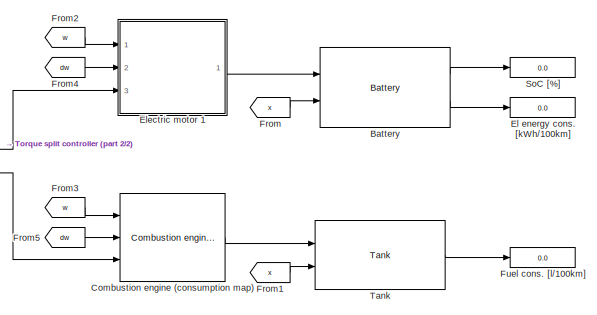
[diagram: root canvas - part 1/2, right side, full height]
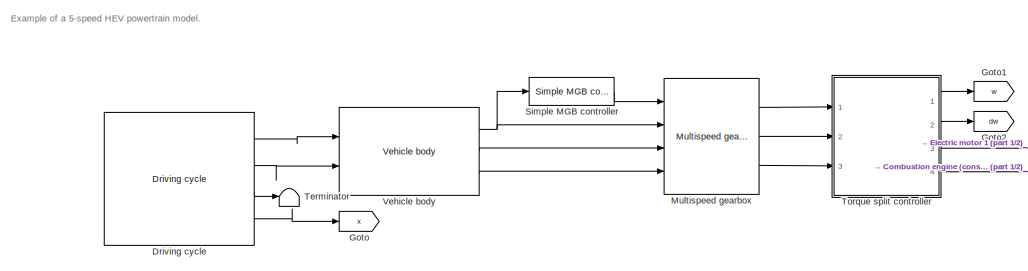
[diagram: root canvas - part 2/2, left side, full height]
MODEL slx_76bec8218064
KIND model
CONFIG AbsTol = auto
CONFIG EnableMultiTasking = off
CONFIG FixedStep = 1
CONFIG MaxStep = auto
CONFIG MinStep = auto
CONFIG RelTol = 1e-3
CONFIG SampleTimeConstraint = Unconstrained
CONFIG SolverName = ode1
CONFIG StartTime = 0.0
CONFIG StopTime = 1800
BLOCK [Reference] Battery  REF=EnergyStorage/Battery
  Ports = [2, 2]
  SourceBlock = EnergyStorage/Battery
  SourceProductName = QSS TU/e 4AT030
  SourceType = Battery
BLOCK [Reference] Combustion engine (consumption map)  REF=EnergyConverters/Combustion engine 
(consumption map)
  Ports = [3, 1]
  SourceBlock = EnergyConverters/Combustion engine \n(consumption map)
  SourceProductName = QSS TU/e Toolbox
  SourceType = Combustion Engine (based on consumption map)
  Tag = combustion engine
BLOCK [Reference] Driving cycle  REF=DrivingCycle/Driving cycle
  Ports = [0, 4]
  SourceBlock = DrivingCycle/Driving cycle
  SourceProductName = QSS TU/e 4AT030
  SourceType = Driving cycle
BLOCK [Display] El energy cons. [kWh//100km]
  Decimation = 1
  Ports = [1]
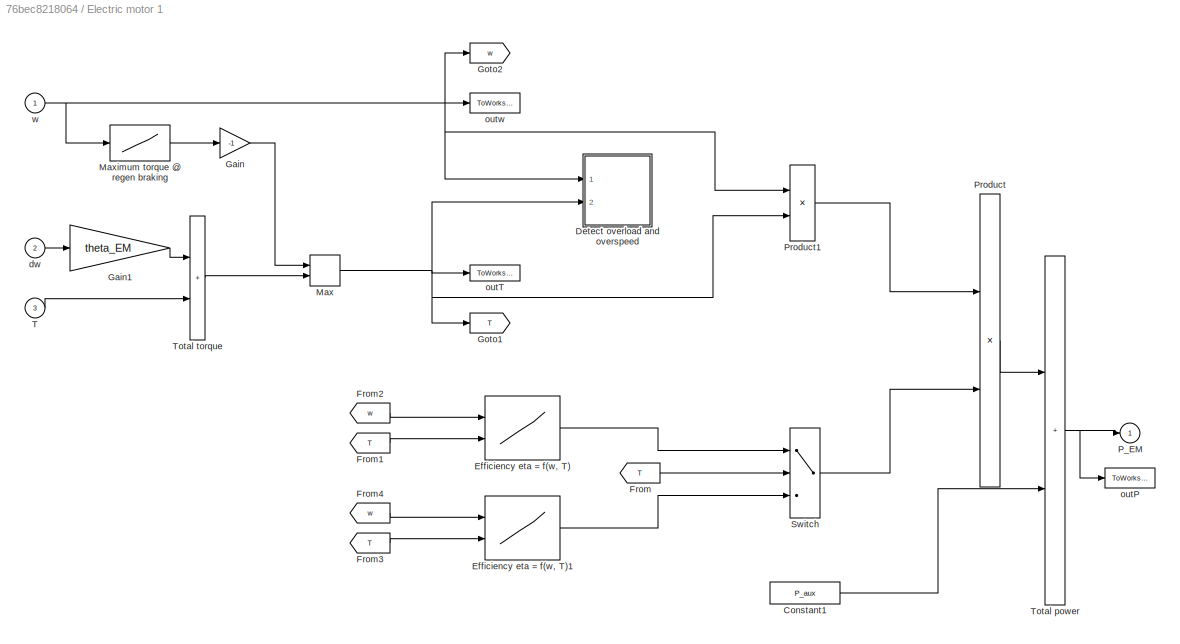
BLOCK [SubSystem] Electric motor 1
  Ports = [3, 1]
  RequestExecContextInheritance = off
BLOCK [Constant] Electric motor 1/Constant1
  Value = P_aux
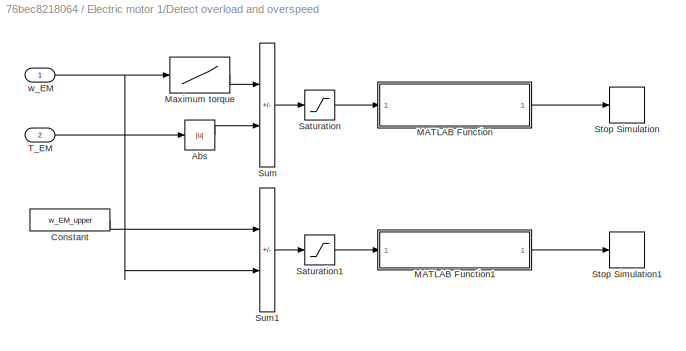
BLOCK [SubSystem] Electric motor 1/Detect overload and overspeed
  Ports = [2]
  RequestExecContextInheritance = off
BLOCK [Abs] Electric motor 1/Detect overload and overspeed/Abs
BLOCK [Constant] Electric motor 1/Detect overload and overspeed/Constant
  Value = w_EM_upper
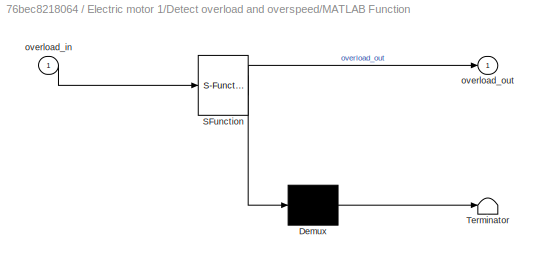
BLOCK [SubSystem] Electric motor 1/Detect overload and overspeed/MATLAB Function
  ErrorFcn = Stateflow.Translate.translate
  PermitHierarchicalResolution = ExplicitOnly
  Ports = [1, 1]
  RequestExecContextInheritance = off
  SFBlockType = MATLAB Function
  TreatAsAtomicUnit = on
BLOCK [Demux] Electric motor 1/Detect overload and overspeed/MATLAB Function/ Demux 
  Outputs = 1
  Ports = [1, 1]
BLOCK [S-Function] Electric motor 1/Detect overload and overspeed/MATLAB Function/ SFunction 
  EnableBusSupport = on
  FunctionName = sf_sfun
  PortCounts = [1 2]
  Ports = [1, 2]
  SFcnIsStateOwnerBlock = off
  SFunctionDeploymentMode = off
  Tag = Stateflow S-Function 1
BLOCK [Terminator] Electric motor 1/Detect overload and overspeed/MATLAB Function/ Terminator 
BLOCK [Inport] Electric motor 1/Detect overload and overspeed/MATLAB Function/overload_in
BLOCK [Outport] Electric motor 1/Detect overload and overspeed/MATLAB Function/overload_out
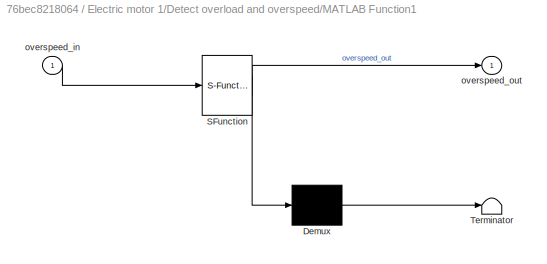
BLOCK [SubSystem] Electric motor 1/Detect overload and overspeed/MATLAB Function1
  ErrorFcn = Stateflow.Translate.translate
  PermitHierarchicalResolution = ExplicitOnly
  Ports = [1, 1]
  RequestExecContextInheritance = off
  SFBlockType = MATLAB Function
  TreatAsAtomicUnit = on
BLOCK [Demux] Electric motor 1/Detect overload and overspeed/MATLAB Function1/ Demux 
  Outputs = 1
  Ports = [1, 1]
BLOCK [S-Function] Electric motor 1/Detect overload and overspeed/MATLAB Function1/ SFunction 
  EnableBusSupport = on
  FunctionName = sf_sfun
  PortCounts = [1 2]
  Ports = [1, 2]
  SFcnIsStateOwnerBlock = off
  SFunctionDeploymentMode = off
  Tag = Stateflow S-Function 2
BLOCK [Terminator] Electric motor 1/Detect overload and overspeed/MATLAB Function1/ Terminator 
BLOCK [Inport] Electric motor 1/Detect overload and overspeed/MATLAB Function1/overspeed_in
BLOCK [Outport] Electric motor 1/Detect overload and overspeed/MATLAB Function1/overspeed_out
BLOCK [Lookup] Electric motor 1/Detect overload and overspeed/Maximum torque
  InputValues = w_EM_row
  Table = T_EM_max
BLOCK [Saturate] Electric motor 1/Detect overload and overspeed/Saturation
  LowerLimit = -inf
  UpperLimit = 0
BLOCK [Saturate] Electric motor 1/Detect overload and overspeed/Saturation1
  LowerLimit = -inf
  UpperLimit = 0
BLOCK [Stop] Electric motor 1/Detect overload and overspeed/Stop Simulation
BLOCK [Stop] Electric motor 1/Detect overload and overspeed/Stop Simulation1
BLOCK [Sum] Electric motor 1/Detect overload and overspeed/Sum
  IconShape = rectangular
  InputSameDT = on
  Inputs = +-
  OutDataTypeStr = Inherit: Same as first input
  Ports = [2, 1]
  SaturateOnIntegerOverflow = on
BLOCK [Sum] Electric motor 1/Detect overload and overspeed/Sum1
  IconShape = rectangular
  InputSameDT = on
  Inputs = +-
  OutDataTypeStr = Inherit: Same as first input
  Ports = [2, 1]
  SaturateOnIntegerOverflow = on
BLOCK [Inport] Electric motor 1/Detect overload and overspeed/T_EM
  Port = 2
BLOCK [Inport] Electric motor 1/Detect overload and overspeed/w_EM
BLOCK [Lookup2D] Electric motor 1/Efficiency eta = f(w, T)
  ColumnIndex = T_EM_col
  InputSameDT = off
  RowIndex = w_EM_row
  SaturateOnIntegerOverflow = off
  Table = eta_EM_mapM
BLOCK [Lookup2D] Electric motor 1/Efficiency eta = f(w, T)1
  ColumnIndex = T_EM_col
  InputSameDT = off
  RowIndex = w_EM_row
  SaturateOnIntegerOverflow = off
  Table = eta_EM_mapG
BLOCK [From] Electric motor 1/From
  GotoTag = T
BLOCK [From] Electric motor 1/From1
  GotoTag = T
BLOCK [From] Electric motor 1/From2
  GotoTag = w
BLOCK [From] Electric motor 1/From3
  GotoTag = T
BLOCK [From] Electric motor 1/From4
  GotoTag = w
BLOCK [Gain] Electric motor 1/Gain
  Gain = -1
BLOCK [Gain] Electric motor 1/Gain1
  Gain = theta_EM
  OutDataTypeStr = Inherit: Same as input
  ParamDataTypeStr = Inherit: Same as input
  SaturateOnIntegerOverflow = on
BLOCK [Goto] Electric motor 1/Goto1
  GotoTag = T
BLOCK [Goto] Electric motor 1/Goto2
  GotoTag = w
BLOCK [MinMax] Electric motor 1/Max
  Function = max
  Inputs = 2
  Ports = [2, 1]
BLOCK [Lookup] Electric motor 1/Maximum torque @ regen braking
  InputValues = w_EM_row
  Table = T_EM_max
BLOCK [Outport] Electric motor 1/P_EM
  InitialOutput = 0
BLOCK [Product] Electric motor 1/Product
  InputSameDT = on
  OutDataTypeStr = Inherit: Same as first input
  Ports = [2, 1]
  RndMeth = Zero
  SaturateOnIntegerOverflow = on
BLOCK [Product] Electric motor 1/Product1
  Ports = [2, 1]
BLOCK [Switch] Electric motor 1/Switch
  Criteria = u2 > Threshold
  InputSameDT = off
  SaturateOnIntegerOverflow = off
BLOCK [Inport] Electric motor 1/T
  Port = 3
BLOCK [Sum] Electric motor 1/Total power
  IconShape = rectangular
  InputSameDT = on
  OutDataTypeStr = Inherit: Same as first input
  Ports = [2, 1]
  SaturateOnIntegerOverflow = on
BLOCK [Sum] Electric motor 1/Total torque
  IconShape = rectangular
  InputSameDT = on
  OutDataTypeStr = Inherit: Same as first input
  Ports = [2, 1]
  SaturateOnIntegerOverflow = on
BLOCK [Inport] Electric motor 1/dw
  Port = 2
BLOCK [ToWorkspace] Electric motor 1/outP
  MaxDataPoints = inf
  Ports = [1]
  SampleTime = -1
  VariableName = P_EM1
BLOCK [ToWorkspace] Electric motor 1/outT
  MaxDataPoints = inf
  NameLocation = top
  Ports = [1]
  SampleTime = -1
  VariableName = T_EM1
BLOCK [ToWorkspace] Electric motor 1/outw
  MaxDataPoints = inf
  NameLocation = top
  Ports = [1]
  SampleTime = -1
  VariableName = w_EM1
BLOCK [Inport] Electric motor 1/w
BLOCK [From] From
  GotoTag = x
BLOCK [From] From1
  GotoTag = x
BLOCK [From] From2
  GotoTag = w
BLOCK [From] From3
  GotoTag = w
BLOCK [From] From4
  GotoTag = dw
BLOCK [From] From5
  GotoTag = dw
BLOCK [Display] Fuel cons. [l//100km]
  Decimation = 1
  Ports = [1]
BLOCK [Goto] Goto
  GotoTag = x
BLOCK [Goto] Goto1
  GotoTag = w
BLOCK [Goto] Goto2
  GotoTag = dw
BLOCK [Reference] Multispeed gearbox  REF=GearSystems/Multispeed gearbox
  Ports = [4, 3]
  SourceBlock = GearSystems/Multispeed gearbox
  SourceProductName = QSS TU/e Toolbox
  SourceType = Manual Gear Box
  Tag = transmission
BLOCK [Reference] Simple MGB controller  REF=GearSystemsControl/Simple MGB controller
  NameLocation = top
  Ports = [1, 1]
  SourceBlock = GearSystemsControl/Simple MGB controller
  SourceProductName = QSS TU/e 4AT030
  SourceType = Simple MGB controller
BLOCK [Display] SoC [%]
  Decimation = 1
  Ports = [1]
BLOCK [Reference] Tank  REF=EnergyStorage/Tank
  Ports = [2, 1]
  SourceBlock = EnergyStorage/Tank
  SourceProductName = QSS TU/e 4AT030
  SourceType = Tank
  Tag = tank
BLOCK [Terminator] Terminator
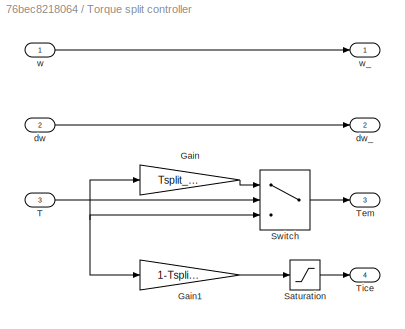
BLOCK [SubSystem] Torque split controller
  Ports = [3, 4]
  RequestExecContextInheritance = off
BLOCK [Gain] Torque split controller/Gain
  Gain = Tsplit_em
BLOCK [Gain] Torque split controller/Gain1
  Gain = 1-Tsplit_em
BLOCK [Saturate] Torque split controller/Saturation
  LowerLimit = 0
  UpperLimit = inf
BLOCK [Switch] Torque split controller/Switch
  Criteria = u2 > Threshold
  InputSameDT = off
  SaturateOnIntegerOverflow = off
BLOCK [Inport] Torque split controller/T
  Port = 3
BLOCK [Outport] Torque split controller/Tem
  Port = 3
BLOCK [Outport] Torque split controller/Tice
  Port = 4
BLOCK [Inport] Torque split controller/dw
  Port = 2
BLOCK [Outport] Torque split controller/dw_
  Port = 2
BLOCK [Inport] Torque split controller/w
BLOCK [Outport] Torque split controller/w_
BLOCK [Reference] Vehicle body  REF=VehicleBody/Vehicle body
  Ports = [2, 3]
  SourceBlock = VehicleBody/Vehicle body
  SourceProductName = QSS TU/e 4AT030
  SourceType = Vehicle body
ANNOTATION (root): Example of a 5-speed HEV powertrain model.
LINE Battery:1 -> SoC [%]:1
LINE Battery:2 -> El energy cons. [kWh//100km]:1
LINE Combustion engine (consumption map):1 -> Tank:1
LINE Driving cycle:1 -> Vehicle body:1
LINE Driving cycle:2 -> Vehicle body:2
LINE Driving cycle:3 -> Terminator:1
LINE Driving cycle:4 -> Goto:1
LINE Electric motor 1/Constant1:1 -> Electric motor 1/Total power:2
LINE Electric motor 1/Detect overload and overspeed/Abs:1 -> Electric motor 1/Detect overload and overspeed/Sum:2
LINE Electric motor 1/Detect overload and overspeed/Constant:1 -> Electric motor 1/Detect overload and overspeed/Sum1:1
LINE Electric motor 1/Detect overload and overspeed/MATLAB Function1:1 -> Electric motor 1/Detect overload and overspeed/Stop Simulation1:1
LINE Electric motor 1/Detect overload and overspeed/MATLAB Function:1 -> Electric motor 1/Detect overload and overspeed/Stop Simulation:1
LINE Electric motor 1/Detect overload and overspeed/Maximum torque:1 -> Electric motor 1/Detect overload and overspeed/Sum:1
LINE Electric motor 1/Detect overload and overspeed/Saturation1:1 -> Electric motor 1/Detect overload and overspeed/MATLAB Function1:1
LINE Electric motor 1/Detect overload and overspeed/Saturation:1 -> Electric motor 1/Detect overload and overspeed/MATLAB Function:1
LINE Electric motor 1/Detect overload and overspeed/Sum1:1 -> Electric motor 1/Detect overload and overspeed/Saturation1:1
LINE Electric motor 1/Detect overload and overspeed/Sum:1 -> Electric motor 1/Detect overload and overspeed/Saturation:1
LINE Electric motor 1/Detect overload and overspeed/T_EM:1 -> Electric motor 1/Detect overload and overspeed/Abs:1
NET Electric motor 1/Detect overload and overspeed/w_EM:1 -> Electric motor 1/Detect overload and overspeed/Maximum torque:1, Electric motor 1/Detect overload and overspeed/Sum1:2
LINE Electric motor 1/Efficiency eta = f(w, T)1:1 -> Electric motor 1/Switch:3
LINE Electric motor 1/Efficiency eta = f(w, T):1 -> Electric motor 1/Switch:1
LINE Electric motor 1/From1:1 -> Electric motor 1/Efficiency eta = f(w, T):2
LINE Electric motor 1/From2:1 -> Electric motor 1/Efficiency eta = f(w, T):1
LINE Electric motor 1/From3:1 -> Electric motor 1/Efficiency eta = f(w, T)1:2
LINE Electric motor 1/From4:1 -> Electric motor 1/Efficiency eta = f(w, T)1:1
LINE Electric motor 1/From:1 -> Electric motor 1/Switch:2
LINE Electric motor 1/Gain1:1 -> Electric motor 1/Total torque:1
LINE Electric motor 1/Gain:1 -> Electric motor 1/Max:1
NET Electric motor 1/Max:1 -> Electric motor 1/Detect overload and overspeed:2, Electric motor 1/Goto1:1, Electric motor 1/Product1:2, Electric motor 1/outT:1
LINE Electric motor 1/Maximum torque @ regen braking:1 -> Electric motor 1/Gain:1
LINE Electric motor 1/Product1:1 -> Electric motor 1/Product:1
LINE Electric motor 1/Product:1 -> Electric motor 1/Total power:1
LINE Electric motor 1/Switch:1 -> Electric motor 1/Product:2
LINE Electric motor 1/T:1 -> Electric motor 1/Total torque:2
NET Electric motor 1/Total power:1 -> Electric motor 1/P_EM:1, Electric motor 1/outP:1
LINE Electric motor 1/Total torque:1 -> Electric motor 1/Max:2
LINE Electric motor 1/dw:1 -> Electric motor 1/Gain1:1
NET Electric motor 1/w:1 -> Electric motor 1/Detect overload and overspeed:1, Electric motor 1/Goto2:1, Electric motor 1/Maximum torque @ regen braking:1, Electric motor 1/Product1:1, Electric motor 1/outw:1
LINE Electric motor 1:1 -> Battery:1
LINE From1:1 -> Tank:2
LINE From2:1 -> Electric motor 1:1
LINE From3:1 -> Combustion engine (consumption map):1
LINE From4:1 -> Electric motor 1:2
LINE From5:1 -> Combustion engine (consumption map):2
LINE From:1 -> Battery:2
LINE Multispeed gearbox:1 -> Torque split controller:1
LINE Multispeed gearbox:2 -> Torque split controller:2
LINE Multispeed gearbox:3 -> Torque split controller:3
LINE Simple MGB controller:1 -> Multispeed gearbox:1
LINE Tank:1 -> Fuel cons. [l//100km]:1
LINE Torque split controller/Gain1:1 -> Torque split controller/Saturation:1
LINE Torque split controller/Gain:1 -> Torque split controller/Switch:1
LINE Torque split controller/Saturation:1 -> Torque split controller/Tice:1
LINE Torque split controller/Switch:1 -> Torque split controller/Tem:1
NET Torque split controller/T:1 -> Torque split controller/Gain1:1, Torque split controller/Gain:1, Torque split controller/Switch:2, Torque split controller/Switch:3
LINE Torque split controller/dw:1 -> Torque split controller/dw_:1
LINE Torque split controller/w:1 -> Torque split controller/w_:1
LINE Torque split controller:1 -> Goto1:1
LINE Torque split controller:2 -> Goto2:1
LINE Torque split controller:3 -> Electric motor 1:3
LINE Torque split controller:4 -> Combustion engine (consumption map):3
NET Vehicle body:1 -> Multispeed gearbox:2, Simple MGB controller:1
LINE Vehicle body:2 -> Multispeed gearbox:3
LINE Vehicle body:3 -> Multispeed gearbox:4
note: NET lines group one-source signal fan-out (src -> all destinations, sorted); 1:1 wires keep LINE
CHART Electric motor 1/Detect overload
and overspeed/MATLAB Function1 states=1 transitions=1
  STATE_LABEL 'eML_blk_kernel()'
  STATE_LABEL "SCRIPT:\nfunction overspeed_out = overspeed_fnc(overspeed_in)\n\nif overspeed_in~=0\n     disp('Simulation stopped due to Motor Overspeed.')\nend\n\noverspeed_out = overspeed_in;\n"
CHART Electric motor 1/Detect overload
and overspeed/MATLAB Function states=1 transitions=1
  STATE_LABEL 'eML_blk_kernel()'
  STATE_LABEL "SCRIPT:\nfunction overload_out = overload_fnc(overload_in)\n\nif overload_in~=0\n    disp('Simulation stopped due to Motor Overload.')\nend\n\noverload_out = overload_in;\n"
CHART  states=0 transitions=0
CHART  states=0 transitions=0
